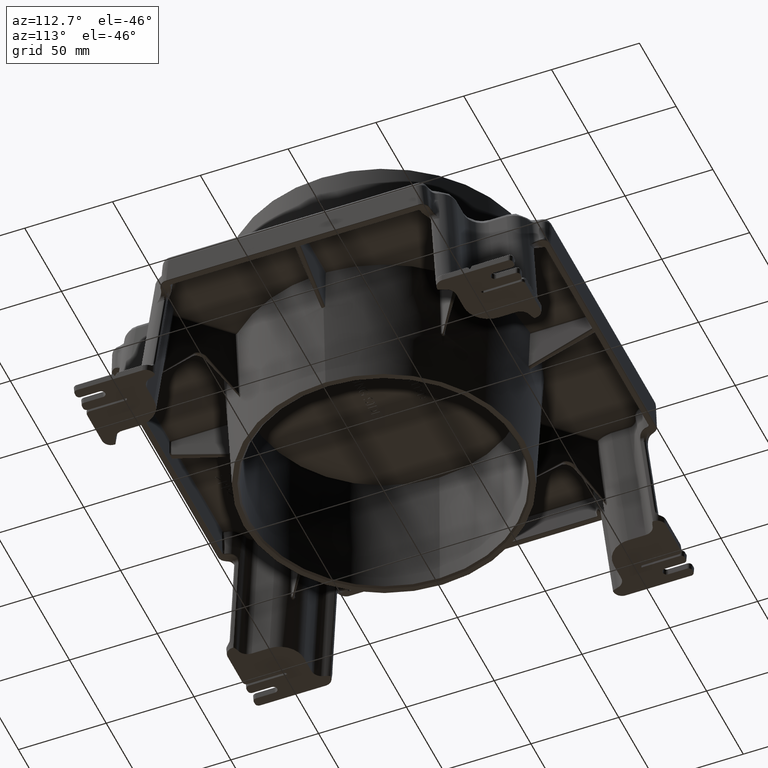
[diagram: clean part render]
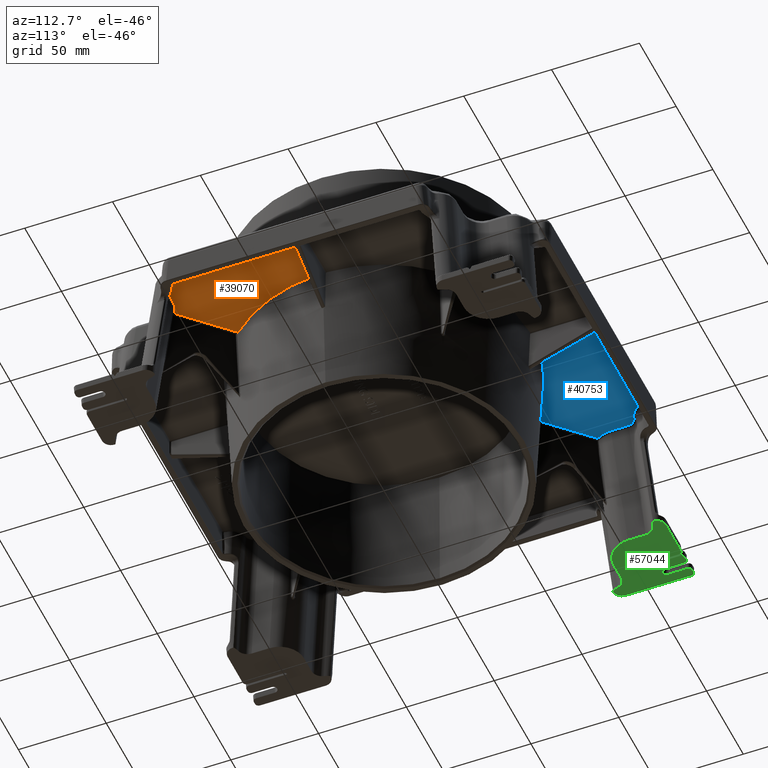
[diagram: same view with three faces highlighted in distinct colors, each labeled with its STEP entity id]
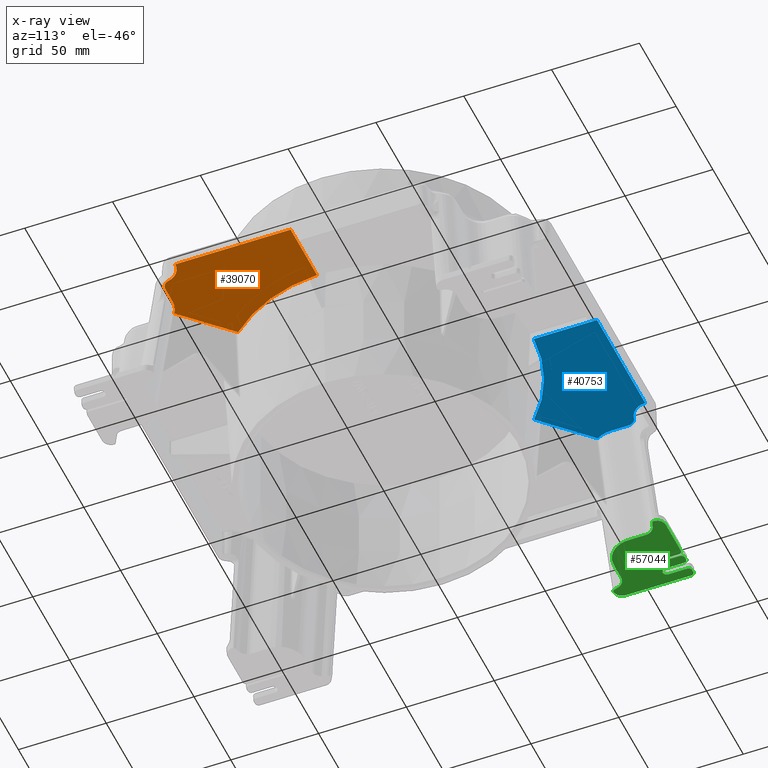
[diagram: x-ray of the same camera — body ghosted, the three highlighted faces saturated]
A machine part, auxiliary view with three faces highlighted in distinct colors.
The next image is the same camera in x-ray (body ghosted, the three faces saturated) — at least one of them is partly hidden behind the body in this view.
Their STEP definitions:

[orange] entity #39070 — the highlighted planar face has unit normal (0, 0, 1).
#35426=CARTESIAN_POINT('',(84.035492143779862,-2.965688774807076,-4.000000000000004));
#35427=VERTEX_POINT('',#35426);
#35441=CARTESIAN_POINT('',(61.519124998770451,-57.325007711660696,-4.000000000000004));
#35442=VERTEX_POINT('',#35441);
#35443=CARTESIAN_POINT('',(0.0,0.0,-4.000000000000004));
#35444=DIRECTION('',(0.0,0.0,-1.0));
#35445=DIRECTION('',(1.0,0.0,0.0));
#35446=AXIS2_PLACEMENT_3D('',#35443,#35444,#35445);
#35447=CIRCLE('',#35446,84.08780678407723);
#35448=EDGE_CURVE('',#35442,#35427,#35447,.F.);
#36126=CARTESIAN_POINT('',(87.096191695520716,-82.902074408410982,-4.0));
#36127=VERTEX_POINT('',#36126);
#36163=CARTESIAN_POINT('',(61.519124998770444,-57.325007711660696,-4.0));
#36164=DIRECTION('',(0.707106781186548,-0.707106781186548,0.0));
#36165=VECTOR('',#36164,36.17143460826545);
#36166=LINE('',#36163,#36165);
#36167=EDGE_CURVE('',#35442,#36127,#36166,.T.);
#39000=CARTESIAN_POINT('',(95.361264601289093,-80.418344129912896,-4.0));
#39001=VERTEX_POINT('',#39000);
#39002=CARTESIAN_POINT('',(95.47564169306311,-95.47564169306311,-4.0));
#39003=DIRECTION('',(0.0,0.0,-1.0));
#39004=DIRECTION('',(-0.707106781186548,0.707106781186548,0.0));
#39005=AXIS2_PLACEMENT_3D('',#39002,#39003,#39004);
#39006=ELLIPSE('',#39005,15.114377916755247,15.000000000000005);
#39007=EDGE_CURVE('',#36127,#39001,#39006,.T.);
#39020=CARTESIAN_POINT('',(0.0,0.0,-4.0));
#39021=DIRECTION('',(0.0,0.0,1.0));
#39022=DIRECTION('',(1.0,0.0,0.0));
#39023=AXIS2_PLACEMENT_3D('',#39020,#39021,#39022);
#39024=PLANE('',#39023);
#39025=ORIENTED_EDGE('',*,*,#36167,.F.);
#39026=ORIENTED_EDGE('',*,*,#35448,.T.);
#39027=CARTESIAN_POINT('',(120.0173027368843,-2.965688774807074,-4.0));
#39028=VERTEX_POINT('',#39027);
#39029=CARTESIAN_POINT('',(120.0173027368843,-2.965688774807075,-4.0));
#39030=DIRECTION('',(-1.0,0.0,0.0));
#39031=VECTOR('',#39030,35.981810593104441);
#39032=LINE('',#39029,#39031);
#39033=EDGE_CURVE('',#39028,#35427,#39032,.T.);
#39034=ORIENTED_EDGE('',*,*,#39033,.F.);
#39035=CARTESIAN_POINT('',(120.0173027368843,-68.683863929008183,-4.0));
#39036=VERTEX_POINT('',#39035);
#39037=CARTESIAN_POINT('',(120.0173027368843,-68.683863929008183,-4.0));
#39038=DIRECTION('',(0.0,1.0,0.0));
#39039=VECTOR('',#39038,65.718175154201106);
#39040=LINE('',#39037,#39039);
#39041=EDGE_CURVE('',#39036,#39028,#39040,.T.);
#39042=ORIENTED_EDGE('',*,*,#39041,.F.);
#39043=CARTESIAN_POINT('',(110.30287990656711,-76.506846156464519,-4.0));
#39044=VERTEX_POINT('',#39043);
#39045=CARTESIAN_POINT('',(120.11014983530902,-78.722048585001275,-4.0));
#39046=DIRECTION('',(0.0,0.0,-1.0));
#39047=DIRECTION('',(-0.707106781186542,0.707106781186553,0.0));
#39048=AXIS2_PLACEMENT_3D('',#39045,#39046,#39047);
#39049=ELLIPSE('',#39048,10.076251944503502,10.000000000000007);
#39050=EDGE_CURVE('',#39044,#39036,#39049,.T.);
#39051=ORIENTED_EDGE('',*,*,#39050,.F.);
#39052=CARTESIAN_POINT('',(105.43737063945416,-80.418344129912896,-4.0));
#39053=VERTEX_POINT('',#39052);
#39054=CARTESIAN_POINT('',(105.39924494219616,-75.399244942196148,-4.0));
#39055=DIRECTION('',(0.0,0.0,1.0));
#39056=DIRECTION('',(0.707106781186548,-0.707106781186548,0.0));
#39057=AXIS2_PLACEMENT_3D('',#39054,#39055,#39056);
#39058=ELLIPSE('',#39057,5.038125972251749,5.000000000000002);
#39059=EDGE_CURVE('',#39053,#39044,#39058,.T.);
#39060=ORIENTED_EDGE('',*,*,#39059,.F.);
#39061=CARTESIAN_POINT('',(95.361264601289093,-80.418344129912896,-4.0));
#39062=DIRECTION('',(1.0,0.0,0.0));
#39063=VECTOR('',#39062,10.076106038165065);
#39064=LINE('',#39061,#39063);
#39065=EDGE_CURVE('',#39001,#39053,#39064,.T.);
#39066=ORIENTED_EDGE('',*,*,#39065,.F.);
#39067=ORIENTED_EDGE('',*,*,#39007,.F.);
#39068=EDGE_LOOP('',(#39025,#39026,#39034,#39042,#39051,#39060,#39066,#39067));
#39069=FACE_OUTER_BOUND('',#39068,.T.);
#39070=ADVANCED_FACE('',(#39069),#39024,.F.);

[blue] entity #40753 — the highlighted planar face has unit normal (0, 0, 1).
#35803=CARTESIAN_POINT('',(-57.32500771166066,61.519124998770494,-4.000000000000004));
#35804=VERTEX_POINT('',#35803);
#35812=CARTESIAN_POINT('',(-2.965688774807069,84.035492143779862,-4.000000000000004));
#35813=VERTEX_POINT('',#35812);
#35814=CARTESIAN_POINT('',(0.0,0.0,-4.000000000000004));
#35815=DIRECTION('',(0.0,0.0,-1.0));
#35816=DIRECTION('',(1.0,0.0,0.0));
#35817=AXIS2_PLACEMENT_3D('',#35814,#35815,#35816);
#35818=CIRCLE('',#35817,84.08780678407723);
#35819=EDGE_CURVE('',#35813,#35804,#35818,.F.);
#40361=CARTESIAN_POINT('',(-82.902074408410954,87.096191695520787,-4.0));
#40362=VERTEX_POINT('',#40361);
#40370=CARTESIAN_POINT('',(-82.902074408410968,87.096191695520801,-4.0));
#40371=DIRECTION('',(0.707106781186547,-0.707106781186547,0.0));
#40372=VECTOR('',#40371,36.171434608265486);
#40373=LINE('',#40370,#40372);
#40374=EDGE_CURVE('',#40362,#35804,#40373,.T.);
#40695=CARTESIAN_POINT('',(0.0,0.0,-4.0));
#40696=DIRECTION('',(0.0,0.0,1.0));
#40697=DIRECTION('',(1.0,0.0,0.0));
#40698=AXIS2_PLACEMENT_3D('',#40695,#40696,#40697);
#40699=PLANE('',#40698);
#40700=ORIENTED_EDGE('',*,*,#40374,.F.);
#40701=CARTESIAN_POINT('',(-80.418344129912896,95.361264601289093,-4.0));
#40702=VERTEX_POINT('',#40701);
#40703=CARTESIAN_POINT('',(-95.47564169306311,95.47564169306311,-4.0));
#40704=DIRECTION('',(0.0,0.0,-1.0));
#40705=DIRECTION('',(0.707106781186548,-0.707106781186548,0.0));
#40706=AXIS2_PLACEMENT_3D('',#40703,#40704,#40705);
#40707=ELLIPSE('',#40706,15.114377916755247,15.000000000000005);
#40708=EDGE_CURVE('',#40702,#40362,#40707,.T.);
#40709=ORIENTED_EDGE('',*,*,#40708,.F.);
#40710=CARTESIAN_POINT('',(-80.418344129912896,105.43737063945416,-4.0));
#40711=VERTEX_POINT('',#40710);
#40712=CARTESIAN_POINT('',(-80.418344129912896,105.43737063945416,-4.0));
#40713=DIRECTION('',(0.0,-1.0,0.0));
#40714=VECTOR('',#40713,10.076106038165065);
#40715=LINE('',#40712,#40714);
#40716=EDGE_CURVE('',#40711,#40702,#40715,.T.);
#40717=ORIENTED_EDGE('',*,*,#40716,.F.);
#40718=CARTESIAN_POINT('',(-76.506846156464533,110.30287990656711,-4.0));
#40719=VERTEX_POINT('',#40718);
#40720=CARTESIAN_POINT('',(-75.399244942196148,105.39924494219616,-4.0));
#40721=DIRECTION('',(0.0,0.0,1.0));
#40722=DIRECTION('',(-0.707106781186548,0.707106781186548,0.0));
#40723=AXIS2_PLACEMENT_3D('',#40720,#40721,#40722);
#40724=ELLIPSE('',#40723,5.038125972251749,5.000000000000002);
#40725=EDGE_CURVE('',#40719,#40711,#40724,.T.);
#40726=ORIENTED_EDGE('',*,*,#40725,.F.);
#40727=CARTESIAN_POINT('',(-68.683863929008183,120.01730273688429,-4.0));
#40728=VERTEX_POINT('',#40727);
#40729=CARTESIAN_POINT('',(-78.722048585001275,120.11014983530902,-4.0));
#40730=DIRECTION('',(0.0,0.0,-1.0));
#40731=DIRECTION('',(0.707106781186553,-0.707106781186542,0.0));
#40732=AXIS2_PLACEMENT_3D('',#40729,#40730,#40731);
#40733=ELLIPSE('',#40732,10.076251944503493,9.999999999999998);
#40734=EDGE_CURVE('',#40728,#40719,#40733,.T.);
#40735=ORIENTED_EDGE('',*,*,#40734,.F.);
#40736=CARTESIAN_POINT('',(-2.965688774807074,120.0173027368843,-4.0));
#40737=VERTEX_POINT('',#40736);
#40738=CARTESIAN_POINT('',(-2.965688774807077,120.0173027368843,-4.0));
#40739=DIRECTION('',(-1.0,0.0,0.0));
#40740=VECTOR('',#40739,65.71817515420112);
#40741=LINE('',#40738,#40740);
#40742=EDGE_CURVE('',#40737,#40728,#40741,.T.);
#40743=ORIENTED_EDGE('',*,*,#40742,.F.);
#40744=CARTESIAN_POINT('',(-2.96568877480707,84.035492143779862,-4.0));
#40745=DIRECTION('',(0.0,1.0,0.0));
#40746=VECTOR('',#40745,35.981810593104441);
#40747=LINE('',#40744,#40746);
#40748=EDGE_CURVE('',#35813,#40737,#40747,.T.);
#40749=ORIENTED_EDGE('',*,*,#40748,.F.);
#40750=ORIENTED_EDGE('',*,*,#35819,.T.);
#40751=EDGE_LOOP('',(#40700,#40709,#40717,#40726,#40735,#40743,#40749,#40750));
#40752=FACE_OUTER_BOUND('',#40751,.T.);
#40753=ADVANCED_FACE('',(#40752),#40699,.F.);

[green] entity #57044 — the highlighted planar face has unit normal (0, 0, 1).
#41022=CARTESIAN_POINT('',(-102.10551683223683,88.158791058952374,-82.000000000000014));
#41023=VERTEX_POINT('',#41022);
#41030=CARTESIAN_POINT('',(-88.158791058952374,102.10551683223684,-82.000000000000014));
#41031=VERTEX_POINT('',#41030);
#41032=CARTESIAN_POINT('',(-102.21226878455926,102.21226878455926,-82.000000000000014));
#41033=DIRECTION('',(0.0,0.0,1.0));
#41034=DIRECTION('',(0.707106781186548,-0.707106781186548,0.0));
#41035=AXIS2_PLACEMENT_3D('',#41032,#41033,#41034);
#41036=ELLIPSE('',#41035,14.106752722304895,14.000000000000002);
#41037=EDGE_CURVE('',#41023,#41031,#41036,.T.);
#50566=CARTESIAN_POINT('',(-121.20689018664135,124.79036888286782,-82.000000000000014));
#50567=VERTEX_POINT('',#50566);
#50574=CARTESIAN_POINT('',(-122.79310981335865,124.79036888286782,-82.000000000000014));
#50575=VERTEX_POINT('',#50574);
#50576=CARTESIAN_POINT('',(-122.79310981335865,124.79036888286782,-82.000000000000014));
#50577=DIRECTION('',(1.0,0.0,0.0));
#50578=VECTOR('',#50577,1.586219626717309);
#50579=LINE('',#50576,#50578);
#50580=EDGE_CURVE('',#50567,#50575,#50579,.F.);
#50597=CARTESIAN_POINT('',(-119.20963111713215,122.79310981335868,-82.000000000000014));
#50598=VERTEX_POINT('',#50597);
#50605=CARTESIAN_POINT('',(-121.21237580912803,122.78762419087199,-82.000000000000014));
#50606=DIRECTION('',(0.0,0.0,1.0));
#50607=DIRECTION('',(0.707106781186548,0.707106781186548,0.0));
#50608=AXIS2_PLACEMENT_3D('',#50605,#50606,#50607);
#50609=ELLIPSE('',#50608,2.005485627631133,2.0);
#50610=EDGE_CURVE('',#50598,#50567,#50609,.T.);
#50622=CARTESIAN_POINT('',(-119.20963111713218,112.0,-82.000000000000014));
#50623=VERTEX_POINT('',#50622);
#50630=CARTESIAN_POINT('',(-119.20963111713215,112.0,-82.000000000000014));
#50631=DIRECTION('',(0.0,1.0,0.0));
#50632=VECTOR('',#50631,10.793109813358683);
#50633=LINE('',#50630,#50632);
#50634=EDGE_CURVE('',#50598,#50623,#50633,.F.);
#50646=CARTESIAN_POINT('',(-114.79036888286784,112.0,-82.000000000000014));
#50647=VERTEX_POINT('',#50646);
#50654=CARTESIAN_POINT('',(-117.00000000000003,112.0,-82.000000000000014));
#50655=DIRECTION('',(0.0,0.0,1.0));
#50656=DIRECTION('',(-0.707106781186541,-0.707106781186554,0.0));
#50657=AXIS2_PLACEMENT_3D('',#50654,#50655,#50656);
#50658=CIRCLE('',#50657,2.209631117132165);
#50659=EDGE_CURVE('',#50647,#50623,#50658,.F.);
#50671=CARTESIAN_POINT('',(-114.79036888286784,122.79310981335868,-82.000000000000014));
#50672=VERTEX_POINT('',#50671);
#50679=CARTESIAN_POINT('',(-114.79036888286784,122.79310981335868,-82.000000000000014));
#50680=DIRECTION('',(0.0,-1.0,0.0));
#50681=VECTOR('',#50680,10.793109813358683);
#50682=LINE('',#50679,#50681);
#50683=EDGE_CURVE('',#50647,#50672,#50682,.F.);
#50695=CARTESIAN_POINT('',(-112.79310981335868,124.79036888286782,-82.000000000000014));
#50696=VERTEX_POINT('',#50695);
#50703=CARTESIAN_POINT('',(-112.78762419087201,122.78762419087199,-82.000000000000014));
#50704=DIRECTION('',(0.0,0.0,1.0));
#50705=DIRECTION('',(-0.707106781186548,0.707106781186548,0.0));
#50706=AXIS2_PLACEMENT_3D('',#50703,#50704,#50705);
#50707=ELLIPSE('',#50706,2.005485627631133,2.0);
#50708=EDGE_CURVE('',#50696,#50672,#50707,.T.);
#50720=CARTESIAN_POINT('',(-111.20689018664137,124.79036888286782,-82.000000000000014));
#50721=VERTEX_POINT('',#50720);
#50728=CARTESIAN_POINT('',(-112.79310981335868,124.79036888286782,-82.000000000000014));
#50729=DIRECTION('',(1.0,0.0,0.0));
#50730=VECTOR('',#50729,1.586219626717309);
#50731=LINE('',#50728,#50730);
#50732=EDGE_CURVE('',#50721,#50696,#50731,.F.);
#50744=CARTESIAN_POINT('',(-109.20963111713219,122.7931098133587,-82.000000000000014));
#50745=VERTEX_POINT('',#50744);
#50752=CARTESIAN_POINT('',(-111.21237580912806,122.78762419087199,-82.000000000000014));
#50753=DIRECTION('',(0.0,0.0,1.0));
#50754=DIRECTION('',(0.70710678118656,0.707106781186535,0.0));
#50755=AXIS2_PLACEMENT_3D('',#50752,#50753,#50754);
#50756=ELLIPSE('',#50755,2.005485627631134,2.0);
#50757=EDGE_CURVE('',#50745,#50721,#50756,.T.);
#50770=CARTESIAN_POINT('',(-109.2096311171251,100.91693941642164,-81.999999999932641));
#50771=VERTEX_POINT('',#50770);
#50782=CARTESIAN_POINT('',(-109.20963111713219,100.91693941641591,-82.000000000000014));
#50783=DIRECTION('',(0.0,1.0,0.0));
#50784=VECTOR('',#50783,21.876170396942783);
#50785=LINE('',#50782,#50784);
#50786=EDGE_CURVE('',#50745,#50771,#50785,.F.);
#50943=CARTESIAN_POINT('',(-85.420502311993801,124.79036888286782,-82.000000000000014));
#50944=VERTEX_POINT('',#50943);
#50951=CARTESIAN_POINT('',(-105.8979253719248,124.79036888286782,-82.000000000000014));
#50952=VERTEX_POINT('',#50951);
#50953=CARTESIAN_POINT('',(-105.8979253719248,124.79036888286782,-82.000000000000014));
#50954=DIRECTION('',(1.0,0.0,0.0));
#50955=VECTOR('',#50954,20.477423059930999);
#50956=LINE('',#50953,#50955);
#50957=EDGE_CURVE('',#50944,#50952,#50956,.F.);
#50980=CARTESIAN_POINT('',(-80.424297138607287,119.80634534752404,-82.000000000000014));
#50981=VERTEX_POINT('',#50980);
#50988=CARTESIAN_POINT('',(-85.44339632632402,119.7835071528782,-82.000000000000014));
#50989=DIRECTION('',(0.0,0.0,1.0));
#50990=DIRECTION('',(0.857862219266305,0.513879764882301,0.0));
#50991=AXIS2_PLACEMENT_3D('',#50988,#50989,#50990);
#50992=ELLIPSE('',#50991,5.025934842332649,5.000000000000001);
#50993=EDGE_CURVE('',#50981,#50944,#50992,.T.);
#56771=CARTESIAN_POINT('',(-124.79036888286782,85.420502311993801,-82.000000000000014));
#56772=VERTEX_POINT('',#56771);
#56779=CARTESIAN_POINT('',(-119.80634534752406,80.424297138607287,-82.000000000000014));
#56780=VERTEX_POINT('',#56779);
#56781=CARTESIAN_POINT('',(-119.78350715287823,85.44339632632402,-82.000000000000014));
#56782=DIRECTION('',(0.0,0.0,1.0));
#56783=DIRECTION('',(-0.513879764882302,-0.857862219266305,0.0));
#56784=AXIS2_PLACEMENT_3D('',#56781,#56782,#56783);
#56785=ELLIPSE('',#56784,5.025934842332648,5.0);
#56786=EDGE_CURVE('',#56772,#56780,#56785,.T.);
#56841=CARTESIAN_POINT('',(-119.57965326680842,80.424297138607287,-82.000000000000014));
#56842=VERTEX_POINT('',#56841);
#56843=CARTESIAN_POINT('',(-119.80634534752406,80.424297138607287,-82.000000000000014));
#56844=DIRECTION('',(1.0,0.0,0.0));
#56845=VECTOR('',#56844,0.226692080715637);
#56846=LINE('',#56843,#56845);
#56847=EDGE_CURVE('',#56842,#56780,#56846,.F.);
#56876=CARTESIAN_POINT('',(0.0,0.0,-82.000000000000014));
#56877=DIRECTION('',(0.0,0.0,1.0));
#56878=DIRECTION('',(1.0,0.0,0.0));
#56879=AXIS2_PLACEMENT_3D('',#56876,#56877,#56878);
#56880=PLANE('',#56879);
#56881=ORIENTED_EDGE('',*,*,#56786,.F.);
#56882=CARTESIAN_POINT('',(-124.79036888286782,122.79310981335868,-82.000000000000014));
#56883=VERTEX_POINT('',#56882);
#56884=CARTESIAN_POINT('',(-124.79036888286782,85.420502311993801,-82.000000000000014));
#56885=DIRECTION('',(0.0,1.0,0.0));
#56886=VECTOR('',#56885,37.372607501364882);
#56887=LINE('',#56884,#56886);
#56888=EDGE_CURVE('',#56883,#56772,#56887,.F.);
#56889=ORIENTED_EDGE('',*,*,#56888,.F.);
#56890=CARTESIAN_POINT('',(-122.78762419087198,122.78762419087199,-82.000000000000014));
#56891=DIRECTION('',(0.0,0.0,1.0));
#56892=DIRECTION('',(-0.707106781186554,0.707106781186541,0.0));
#56893=AXIS2_PLACEMENT_3D('',#56890,#56891,#56892);
#56894=ELLIPSE('',#56893,2.005485627631133,2.0);
#56895=EDGE_CURVE('',#50575,#56883,#56894,.T.);
#56896=ORIENTED_EDGE('',*,*,#56895,.F.);
#56897=ORIENTED_EDGE('',*,*,#50580,.F.);
#56898=ORIENTED_EDGE('',*,*,#50610,.F.);
#56899=ORIENTED_EDGE('',*,*,#50634,.T.);
#56900=ORIENTED_EDGE('',*,*,#50659,.F.);
#56901=ORIENTED_EDGE('',*,*,#50683,.T.);
#56902=ORIENTED_EDGE('',*,*,#50708,.F.);
#56903=ORIENTED_EDGE('',*,*,#50732,.F.);
#56904=ORIENTED_EDGE('',*,*,#50757,.F.);
#56905=ORIENTED_EDGE('',*,*,#50786,.T.);
#56906=CARTESIAN_POINT('',(-108.86087965979669,100.90470787846039,-82.000000000000014));
#56907=VERTEX_POINT('',#56906);
#56908=CARTESIAN_POINT('',(-108.86087965979669,100.90470787846041,-82.000000000000014));
#56909=CARTESIAN_POINT('',(-108.9704449523318,100.88963639476486,-82.000000000000014));
#56910=CARTESIAN_POINT('',(-109.08174543609753,100.89246926625947,-82.000000000000014));
#56911=CARTESIAN_POINT('',(-109.19682592131073,100.91431667610732,-82.000000000000014));
#56912=CARTESIAN_POINT('',(-109.2032360457616,100.91559756604997,-82.0));
#56913=CARTESIAN_POINT('',(-109.20963111741378,100.91693941647499,-82.0));
#56914=B_SPLINE_CURVE_WITH_KNOTS('',3,(#56908,#56909,#56910,#56911,#56912,#56913),.UNSPECIFIED.,.F.,.U.,(4,2,4),(0.0,0.033179108870163,0.035140832465145),.UNSPECIFIED.);
#56915=EDGE_CURVE('',#56907,#50771,#56914,.T.);
#56916=ORIENTED_EDGE('',*,*,#56915,.F.);
#56917=CARTESIAN_POINT('',(-107.90470787846044,101.86087965979664,-82.000000000000014));
#56918=VERTEX_POINT('',#56917);
#56919=CARTESIAN_POINT('',(-107.90470787846041,101.86087965979665,-82.0));
#56920=CARTESIAN_POINT('',(-107.92389946685901,101.72136217096067,-82.000000616447593));
#56921=CARTESIAN_POINT('',(-107.96996341493758,101.58688811420024,-81.999790452254487));
#56922=CARTESIAN_POINT('',(-108.03908104356415,101.46408343417929,-81.999817174692836));
#56923=CARTESIAN_POINT('',(-108.08905500650228,101.37529224371247,-81.99983649575708));
#56924=CARTESIAN_POINT('',(-108.15049871604529,101.29379615765367,-81.999961106963752));
#56925=CARTESIAN_POINT('',(-108.22214748604397,101.22214750044594,-81.999959567605714));
#56926=CARTESIAN_POINT('',(-108.25301180889524,101.19128322618192,-81.999958904492516));
#56927=CARTESIAN_POINT('',(-108.28578148460122,101.16225352467794,-81.999930934090003));
#56928=CARTESIAN_POINT('',(-108.32026028374351,101.1351669034044,-81.999902807333598));
#56929=CARTESIAN_POINT('',(-108.39823094236159,101.07391298061785,-81.999839201240107));
#56930=CARTESIAN_POINT('',(-108.48406169268841,101.02320510659312,-81.999790597085763));
#56931=CARTESIAN_POINT('',(-108.57535250965581,100.9841977818062,-81.999831480732169));
#56932=CARTESIAN_POINT('',(-108.66662766519613,100.9451971489341,-81.999872357364751));
#56933=CARTESIAN_POINT('',(-108.76256914571756,100.91823118749573,-82.000000000000014));
#56934=CARTESIAN_POINT('',(-108.86087965979671,100.90470787846041,-82.000000000000014));
#56935=B_SPLINE_CURVE_WITH_KNOTS('',3,(#56919,#56920,#56921,#56922,#56923,#56924,#56925,#56926,#56927,#56928,#56929,#56930,#56931,#56932,#56933,#56934),.UNSPECIFIED.,.F.,.U.,(4,3,3,3,3,4),(0.001455953460027,0.043730948812552,0.074296947821314,0.087463940941999,0.11723989460565,0.14701074004547),.UNSPECIFIED.);
#56936=EDGE_CURVE('',#56918,#56907,#56935,.T.);
#56937=ORIENTED_EDGE('',*,*,#56936,.F.);
#56938=CARTESIAN_POINT('',(-107.89518444143394,102.0,-82.000000000000014));
#56939=VERTEX_POINT('',#56938);
#56940=CARTESIAN_POINT('',(-107.89518444143391,102.0,-82.000000000000014));
#56941=CARTESIAN_POINT('',(-107.89518444143391,101.97650257365497,-82.000000000000014));
#56942=CARTESIAN_POINT('',(-107.89599565278129,101.95301204694915,-82.000000000000014));
#56943=CARTESIAN_POINT('',(-107.89920507495449,101.90660010297256,-82.000000000000014));
#56944=CARTESIAN_POINT('',(-107.90157016077968,101.8836899525524,-82.000000000000014));
#56945=CARTESIAN_POINT('',(-107.90470787846033,101.86087965979664,-82.000000000000014));
#56946=B_SPLINE_CURVE_WITH_KNOTS('',3,(#56940,#56941,#56942,#56943,#56944,#56945),.UNSPECIFIED.,.F.,.U.,(4,2,4),(0.0,0.007049227903505,0.013956833873707),.UNSPECIFIED.);
#56947=EDGE_CURVE('',#56939,#56918,#56946,.T.);
#56948=ORIENTED_EDGE('',*,*,#56947,.F.);
#56949=CARTESIAN_POINT('',(-107.89518444143391,122.79310981335867,-82.000000000000014));
#56950=VERTEX_POINT('',#56949);
#56951=CARTESIAN_POINT('',(-107.89518444143391,122.79310981335867,-82.000000000000014));
#56952=DIRECTION('',(0.0,-1.0,0.0));
#56953=VECTOR('',#56952,20.793109813358669);
#56954=LINE('',#56951,#56953);
#56955=EDGE_CURVE('',#56939,#56950,#56954,.F.);
#56956=ORIENTED_EDGE('',*,*,#56955,.T.);
#56957=CARTESIAN_POINT('',(-105.89243974943811,122.78762419087198,-82.000000000000014));
#56958=DIRECTION('',(0.0,0.0,1.0));
#56959=DIRECTION('',(-0.707106781186541,0.707106781186554,0.0));
#56960=AXIS2_PLACEMENT_3D('',#56957,#56958,#56959);
#56961=ELLIPSE('',#56960,2.005485627631133,2.0);
#56962=EDGE_CURVE('',#50952,#56950,#56961,.T.);
#56963=ORIENTED_EDGE('',*,*,#56962,.F.);
#56964=ORIENTED_EDGE('',*,*,#50957,.F.);
#56965=ORIENTED_EDGE('',*,*,#50993,.F.);
#56966=CARTESIAN_POINT('',(-80.424297138607287,119.57965326680838,-82.000000000000014));
#56967=VERTEX_POINT('',#56966);
#56968=CARTESIAN_POINT('',(-80.424297138607287,119.57965326680838,-82.000000000000014));
#56969=DIRECTION('',(0.0,1.0,0.0));
#56970=VECTOR('',#56969,0.226692080715651);
#56971=LINE('',#56968,#56970);
#56972=EDGE_CURVE('',#50981,#56967,#56971,.F.);
#56973=ORIENTED_EDGE('',*,*,#56972,.T.);
#56974=CARTESIAN_POINT('',(-80.659591256254373,119.15621224298887,-82.000000000000014));
#56975=VERTEX_POINT('',#56974);
#56976=CARTESIAN_POINT('',(-80.926207057378988,119.58346583653422,-82.000000000000014));
#56977=DIRECTION('',(0.0,0.0,1.0));
#56978=DIRECTION('',(0.707106781186557,-0.707106781186538,0.0));
#56979=AXIS2_PLACEMENT_3D('',#56976,#56977,#56978);
#56980=ELLIPSE('',#56979,0.503812597225175,0.5);
#56981=EDGE_CURVE('',#56975,#56967,#56980,.T.);
#56982=ORIENTED_EDGE('',*,*,#56981,.F.);
#56983=CARTESIAN_POINT('',(-83.464993490814336,118.02023399093744,-82.000000000000014));
#56984=VERTEX_POINT('',#56983);
#56985=CARTESIAN_POINT('',(-85.458675676497421,126.84677692680516,-82.000000000000014));
#56986=DIRECTION('',(0.0,0.0,1.0));
#56987=DIRECTION('',(-0.707106781186559,0.707106781186536,0.0));
#56988=AXIS2_PLACEMENT_3D('',#56985,#56986,#56987);
#56989=ELLIPSE('',#56988,9.068626750053143,8.999999999999998);
#56990=EDGE_CURVE('',#56984,#56975,#56989,.T.);
#56991=ORIENTED_EDGE('',*,*,#56990,.F.);
#56992=CARTESIAN_POINT('',(-88.158791058952374,112.1816228704019,-82.000000000000014));
#56993=VERTEX_POINT('',#56992);
#56994=CARTESIAN_POINT('',(-82.135872033692294,112.13587203369229,-82.000000000000014));
#56995=DIRECTION('',(0.0,0.0,-1.0));
#56996=DIRECTION('',(-0.707106781186548,0.707106781186548,0.0));
#56997=AXIS2_PLACEMENT_3D('',#56994,#56995,#56996);
#56998=ELLIPSE('',#56997,6.045751166702099,6.000000000000002);
#56999=EDGE_CURVE('',#56993,#56984,#56998,.T.);
#57000=ORIENTED_EDGE('',*,*,#56999,.F.);
#57001=CARTESIAN_POINT('',(-88.158791058952374,112.1816228704019,-82.000000000000014));
#57002=DIRECTION('',(0.0,-1.0,0.0));
#57003=VECTOR('',#57002,10.076106038165051);
#57004=LINE('',#57001,#57003);
#57005=EDGE_CURVE('',#56993,#41031,#57004,.T.);
#57006=ORIENTED_EDGE('',*,*,#57005,.T.);
#57007=ORIENTED_EDGE('',*,*,#41037,.F.);
#57008=CARTESIAN_POINT('',(-112.18162287040192,88.158791058952374,-82.000000000000014));
#57009=VERTEX_POINT('',#57008);
#57010=CARTESIAN_POINT('',(-102.10551683223683,88.158791058952374,-82.000000000000014));
#57011=DIRECTION('',(-1.0,0.0,0.0));
#57012=VECTOR('',#57011,10.076106038165094);
#57013=LINE('',#57010,#57012);
#57014=EDGE_CURVE('',#41023,#57009,#57013,.T.);
#57015=ORIENTED_EDGE('',*,*,#57014,.T.);
#57016=CARTESIAN_POINT('',(-118.02023399093747,83.464993490814336,-82.000000000000014));
#57017=VERTEX_POINT('',#57016);
#57018=CARTESIAN_POINT('',(-112.13587203369231,82.135872033692294,-82.000000000000014));
#57019=DIRECTION('',(0.0,0.0,-1.0));
#57020=DIRECTION('',(-0.707106781186547,0.707106781186547,0.0));
#57021=AXIS2_PLACEMENT_3D('',#57018,#57019,#57020);
#57022=ELLIPSE('',#57021,6.045751166702098,6.000000000000001);
#57023=EDGE_CURVE('',#57017,#57009,#57022,.T.);
#57024=ORIENTED_EDGE('',*,*,#57023,.F.);
#57025=CARTESIAN_POINT('',(-119.15621224298887,80.65959125625433,-82.000000000000014));
#57026=VERTEX_POINT('',#57025);
#57027=CARTESIAN_POINT('',(-126.84677692680516,85.458675676497421,-82.000000000000014));
#57028=DIRECTION('',(0.0,0.0,1.0));
#57029=DIRECTION('',(-0.707106781186536,0.707106781186559,0.0));
#57030=AXIS2_PLACEMENT_3D('',#57027,#57028,#57029);
#57031=ELLIPSE('',#57030,9.068626750053152,9.000000000000007);
#57032=EDGE_CURVE('',#57026,#57017,#57031,.T.);
#57033=ORIENTED_EDGE('',*,*,#57032,.F.);
#57034=CARTESIAN_POINT('',(-119.58346583653423,80.926207057378974,-82.000000000000014));
#57035=DIRECTION('',(0.0,0.0,1.0));
#57036=DIRECTION('',(0.707106781186538,-0.707106781186557,0.0));
#57037=AXIS2_PLACEMENT_3D('',#57034,#57035,#57036);
#57038=ELLIPSE('',#57037,0.503812597225175,0.5);
#57039=EDGE_CURVE('',#56842,#57026,#57038,.T.);
#57040=ORIENTED_EDGE('',*,*,#57039,.F.);
#57041=ORIENTED_EDGE('',*,*,#56847,.T.);
#57042=EDGE_LOOP('',(#56881,#56889,#56896,#56897,#56898,#56899,#56900,#56901,#56902,#56903,#56904,#56905,#56916,#56937,#56948,#56956,#56963,#56964,#56965,#56973,#56982,#56991,#57000,#57006,#57007,#57015,#57024,#57033,#57040,#57041));
#57043=FACE_OUTER_BOUND('',#57042,.T.);
#57044=ADVANCED_FACE('',(#57043),#56880,.F.);